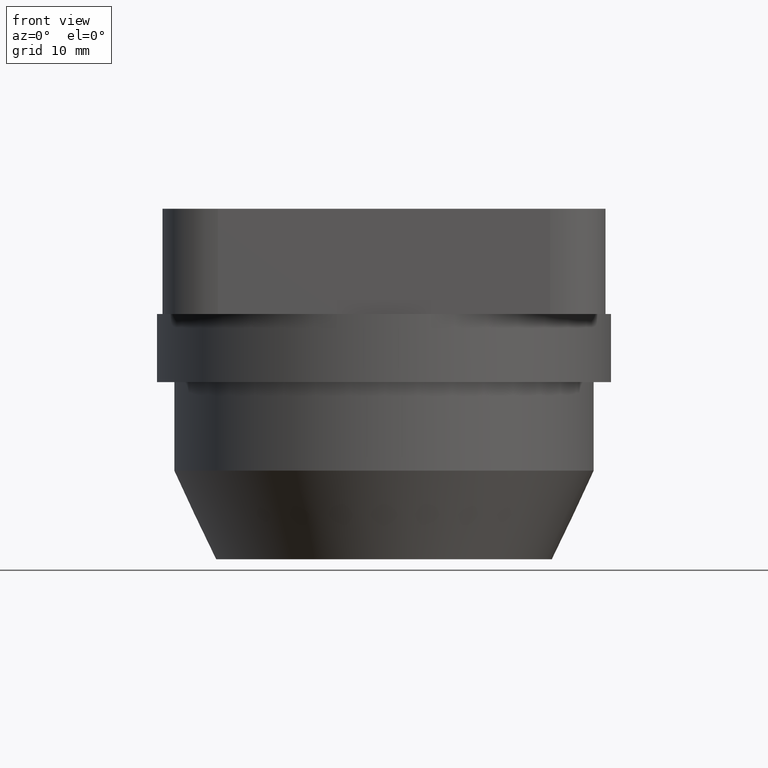
[diagram: clean part render]
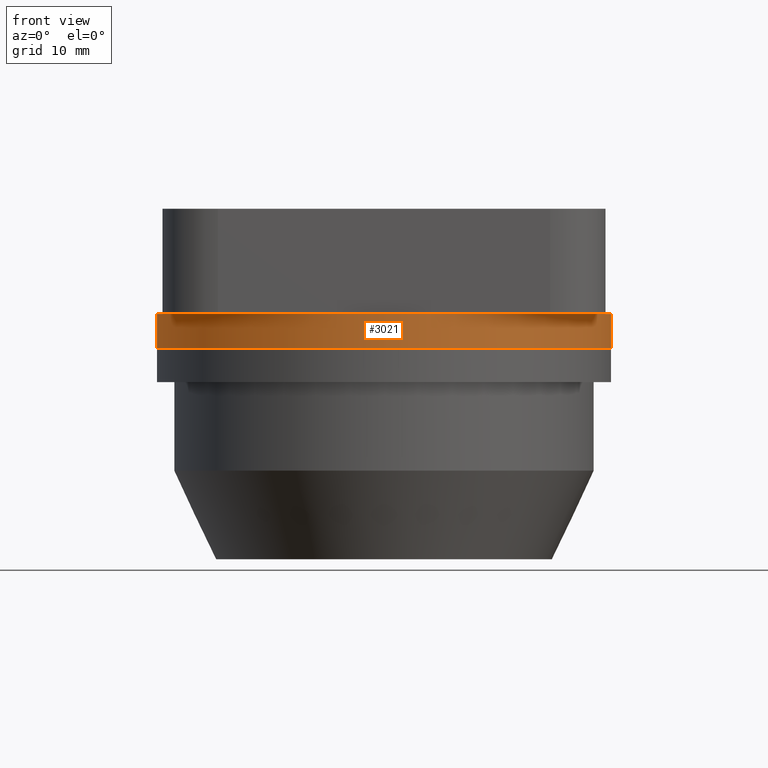
[diagram: same view with one face highlighted and labeled with its STEP entity id]
A machine part, front view. The second image highlights one B-rep face of the part: STEP entity #3021.
In plain terms, the highlighted cylindrical surface (bore or boss wall) has radius 20.5 mm, axis along (0, 0, 1).
Its self-contained STEP definition (entity closure, byte-faithful):
#2994=CARTESIAN_POINT('',(-3.567181873123087,-0.326991688852492,0.0));
#2995=DIRECTION('',(0.0,0.0,1.0));
#2996=DIRECTION('',(-1.0,0.0,0.0));
#2997=AXIS2_PLACEMENT_3D('',#2994,#2995,#2996);
#2998=CYLINDRICAL_SURFACE('',#2997,20.500000000000004);
#2999=CARTESIAN_POINT('',(16.932818126876917,-0.326991688852490,3.150000000000000));
#3000=VERTEX_POINT('',#2999);
#3001=CARTESIAN_POINT('',(-3.567181873123087,-0.326991688852492,3.150000000000000));
#3002=DIRECTION('',(0.0,0.0,-1.0));
#3003=DIRECTION('',(-1.0,0.0,0.0));
#3004=AXIS2_PLACEMENT_3D('',#3001,#3002,#3003);
#3005=CIRCLE('',#3004,20.500000000000004);
#3006=EDGE_CURVE('',#3000,#3000,#3005,.T.);
#3007=ORIENTED_EDGE('',*,*,#3006,.T.);
#3008=EDGE_LOOP('',(#3007));
#3009=FACE_OUTER_BOUND('',#3008,.T.);
#3010=CARTESIAN_POINT('',(16.932818126876917,-0.326991688852490,0.0));
#3011=VERTEX_POINT('',#3010);
#3012=CARTESIAN_POINT('',(-3.567181873123087,-0.326991688852492,0.0));
#3013=DIRECTION('',(0.0,0.0,-1.0));
#3014=DIRECTION('',(-1.0,0.0,0.0));
#3015=AXIS2_PLACEMENT_3D('',#3012,#3013,#3014);
#3016=CIRCLE('',#3015,20.500000000000004);
#3017=EDGE_CURVE('',#3011,#3011,#3016,.T.);
#3018=ORIENTED_EDGE('',*,*,#3017,.F.);
#3019=EDGE_LOOP('',(#3018));
#3020=FACE_BOUND('',#3019,.T.);
#3021=ADVANCED_FACE('',(#3009,#3020),#2998,.T.);